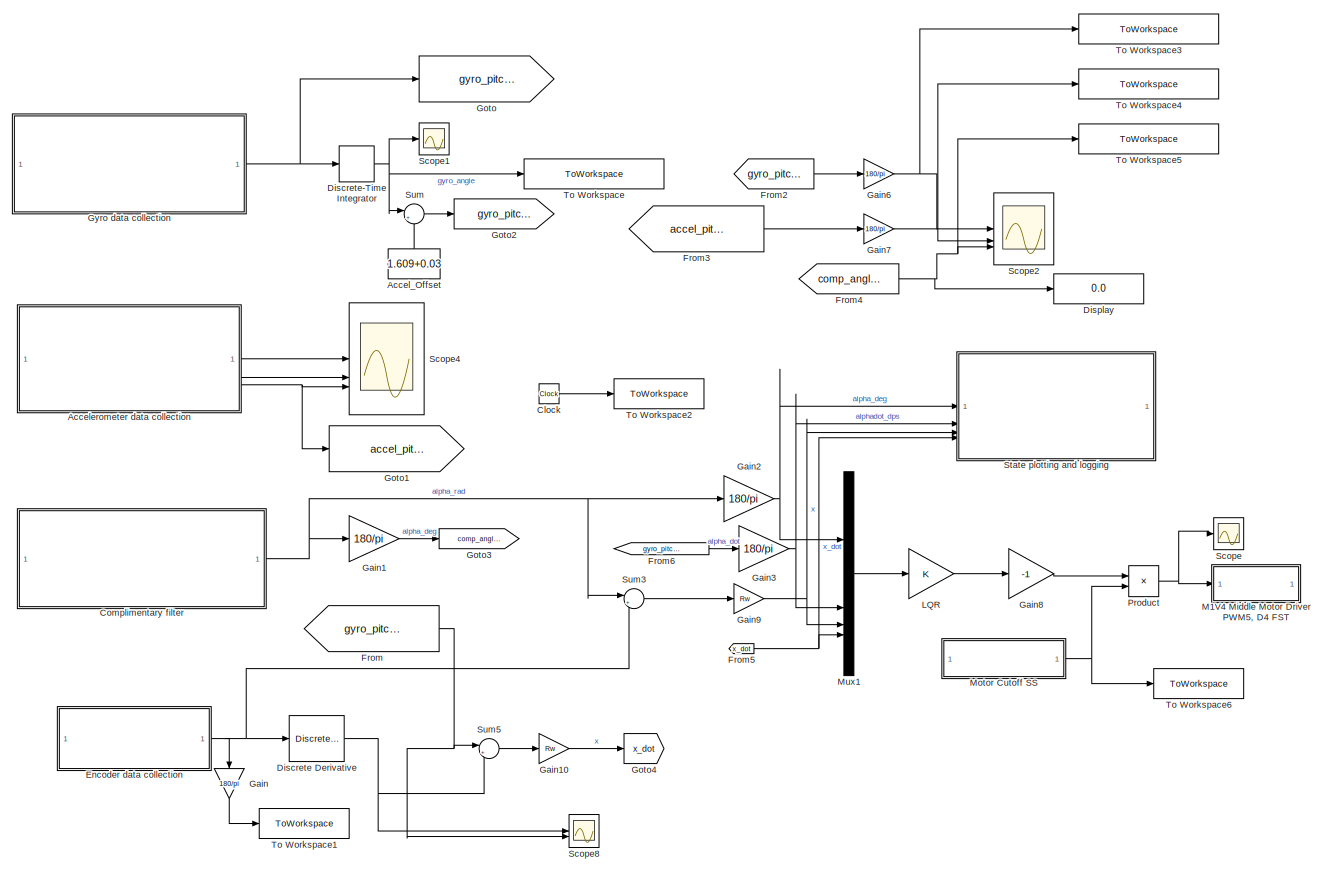
[diagram: root canvas - part 1/1, most of the canvas]
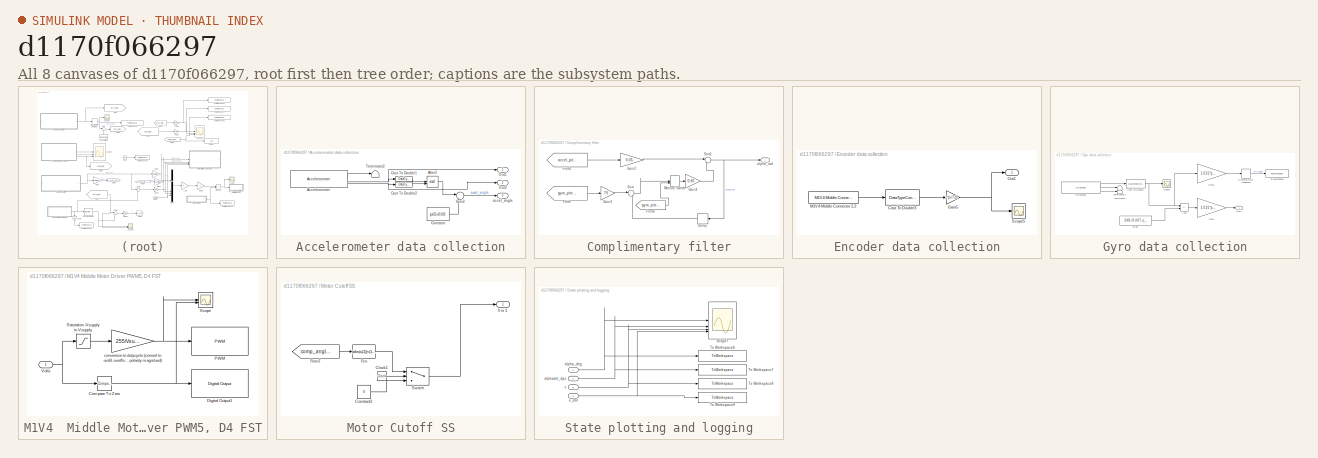
[diagram: thumbnail index - all 8 canvases of the model, root first then tree order]
MODEL slx_d1170f066297
KIND model
CONFIG AbsTol = auto
CONFIG EnableMultiTasking = off
CONFIG FixedStep = 0.005
CONFIG MaxStep = auto
CONFIG MinStep = auto
CONFIG RelTol = 1e-3
CONFIG SampleTimeConstraint = Unconstrained
CONFIG SolverName = FixedStepAuto
CONFIG StartTime = 0.0
CONFIG StopTime = 25
BLOCK [Constant] Accel_Offset
  NameLocation = right
  Value = 1.609+0.03
BLOCK [SubSystem] Accelerometer data collection
BLOCK [Reference] Accelerometer data collection/Accelerometer  REF=RASPlib/Accelerometer
  SourceBlock = RASPlib/Accelerometer
  SourceProductName = Rensselaer Arduino Support Package
  SourceType = soMPU6050Accel
BLOCK [Trigonometry] Accelerometer data collection/Atan2
  Operator = atan2
BLOCK [DataTypeConversion] Accelerometer data collection/Cast To Double1
  OutDataTypeStr = double
  RndMeth = Floor
  SaturateOnIntegerOverflow = off
BLOCK [DataTypeConversion] Accelerometer data collection/Cast To Double2
  OutDataTypeStr = double
  RndMeth = Floor
  SaturateOnIntegerOverflow = off
BLOCK [Constant] Accelerometer data collection/Constant
  Value = pi/2+0.03
BLOCK [Outport] Accelerometer data collection/Out1
BLOCK [Outport] Accelerometer data collection/Out2
  Port = 2
BLOCK [Sum] Accelerometer data collection/Sum2
  Inputs = |++
BLOCK [Terminator] Accelerometer data collection/Terminator2
BLOCK [Outport] Accelerometer data collection/accel_angle
  Port = 3
BLOCK [Clock] Clock
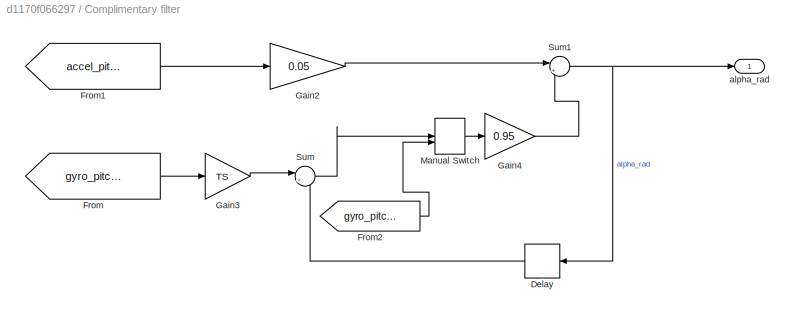
BLOCK [SubSystem] Complimentary filter
BLOCK [Delay] Complimentary filter/Delay
  DelayLength = 1
  InputPortMap = u0
  NameLocation = top
  SampleTime = TS
BLOCK [From] Complimentary filter/From
  GotoTag = gyro_pitch_rate_radpsec
  TagVisibility = global
BLOCK [From] Complimentary filter/From1
  GotoTag = accel_pitch_rad
  TagVisibility = global
BLOCK [From] Complimentary filter/From2
  GotoTag = gyro_pitch_rad
  TagVisibility = global
BLOCK [Gain] Complimentary filter/Gain2
  Gain = 0.05
BLOCK [Gain] Complimentary filter/Gain3
  Gain = TS
BLOCK [Gain] Complimentary filter/Gain4
  Gain = 0.95
BLOCK [ManualSwitch] Complimentary filter/Manual Switch
BLOCK [Sum] Complimentary filter/Sum
  Inputs = |++
BLOCK [Sum] Complimentary filter/Sum1
  Inputs = |++
  NameLocation = top
BLOCK [Outport] Complimentary filter/alpha_rad
BLOCK [Reference] Discrete Derivative  REF=simulink/Discrete/Discrete Derivative
  SourceBlock = simulink/Discrete/Discrete Derivative
  SourceType = Discrete Derivative
BLOCK [DiscreteIntegrator] Discrete-Time Integrator
  ICPrevOutput = DiscIntNeverNeededParam
  ICPrevScaledInput = DiscIntNeverNeededParam
  InitialConditionSetting = Auto
  SampleTime = -1
BLOCK [Display] Display
  Decimation = 1
BLOCK [SubSystem] Encoder data collection
BLOCK [DataTypeConversion] Encoder data collection/Cast To Double3
  OutDataTypeStr = double
  RndMeth = Floor
  SaturateOnIntegerOverflow = off
BLOCK [Gain] Encoder data collection/Gain5
  Gain = 2*pi/720
BLOCK [Reference] Encoder data collection/M1V4 Middle Connector 2,3  REF=MinSegLibrary_M1V4/M1V4 Middle Connector 2,3
  SourceBlock = MinSegLibrary_M1V4/M1V4 Middle Connector 2,3
  SourceProductName = Rensselaer Arduino Support Package
  SourceType = Encoder_arduino
BLOCK [Outport] Encoder data collection/Out1
BLOCK [Scope] Encoder data collection/Scope5
  Floating = off
  NumInputPorts = 1
  ScopeSpecificationString = Simulink.scopes.TimeScopeBlockCfg('CurrentConfiguration', extmgr.ConfigurationSet(extmgr.Configuration('Core','General UI',true),extmgr.Configuration('Core','Source UI',true),extmgr.Configuration('Sources','WiredSimulink',true,'DataLoggingVariableName','ScopeData1'),extmgr.Configuration('Visuals','Time Domain',true,'SerializedDisplays',{struct('MinYLimReal','-11.0283','MaxYLimReal','13.99536','YLa...<+1408ch>
BLOCK [From] From
  GotoTag = gyro_pitch_rate_radpsec
  TagVisibility = global
BLOCK [From] From2
  GotoTag = gyro_pitch_rad
  TagVisibility = global
BLOCK [From] From3
  GotoTag = accel_pitch_rad
  TagVisibility = global
BLOCK [From] From4
  GotoTag = comp_angle_deg
  TagVisibility = global
BLOCK [From] From5
  GotoTag = x_dot
BLOCK [From] From6
  GotoTag = gyro_pitch_rate_radpsec
  TagVisibility = global
BLOCK [Gain] Gain
  Gain = 180/pi
  NameLocation = left
BLOCK [Gain] Gain1
  Gain = 180/pi
BLOCK [Gain] Gain10
  Gain = Rw
BLOCK [Gain] Gain2
  Gain = 180/pi
BLOCK [Gain] Gain3
  Gain = 180/pi
BLOCK [Gain] Gain6
  Gain = 180/pi
BLOCK [Gain] Gain7
  Gain = 180/pi
BLOCK [Gain] Gain8
  Gain = -1
BLOCK [Gain] Gain9
  Gain = Rw
BLOCK [Goto] Goto
  GotoTag = gyro_pitch_rate_radpsec
  TagVisibility = global
BLOCK [Goto] Goto1
  GotoTag = accel_pitch_rad
  TagVisibility = global
BLOCK [Goto] Goto2
  GotoTag = gyro_pitch_rad
  TagVisibility = global
BLOCK [Goto] Goto3
  GotoTag = comp_angle_deg
  TagVisibility = global
BLOCK [Goto] Goto4
  GotoTag = x_dot
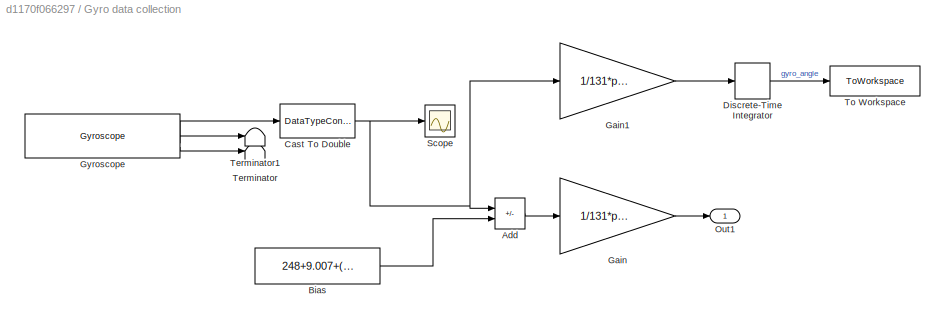
BLOCK [SubSystem] Gyro data collection
BLOCK [Sum] Gyro data collection/Add
  IconShape = rectangular
  Inputs = +-
BLOCK [Constant] Gyro data collection/Bias
  Value = 248+9.007+(-0.009/10)/GSc-20
BLOCK [DataTypeConversion] Gyro data collection/Cast To Double
  OutDataTypeStr = double
  RndMeth = Floor
  SaturateOnIntegerOverflow = off
BLOCK [DiscreteIntegrator] Gyro data collection/Discrete-Time Integrator
  ICPrevOutput = DiscIntNeverNeededParam
  ICPrevScaledInput = DiscIntNeverNeededParam
  InitialConditionSetting = Auto
  SampleTime = -1
BLOCK [Gain] Gyro data collection/Gain
  Gain = 1/131*pi/180
BLOCK [Gain] Gyro data collection/Gain1
  Gain = 1/131*pi/180
BLOCK [Reference] Gyro data collection/Gyroscope  REF=RASPlib/Gyroscope
  SourceBlock = RASPlib/Gyroscope
  SourceProductName = Rensselaer Arduino Support Package
  SourceType = soMPU6050Gyro
BLOCK [Outport] Gyro data collection/Out1
BLOCK [Scope] Gyro data collection/Scope
  Floating = off
  NumInputPorts = 1
  ScopeSpecificationString = Simulink.scopes.TimeScopeBlockCfg('CurrentConfiguration', extmgr.ConfigurationSet(extmgr.Configuration('Core','General UI',true),extmgr.Configuration('Core','Source UI',true),extmgr.Configuration('Sources','WiredSimulink',true),extmgr.Configuration('Visuals','Time Domain',true,'SerializedDisplays',{struct('MinYLimReal','-17493.625','MaxYLimReal','17602.625','YLabelReal','','MinYLimMag','   0.00000...<+1352ch>
BLOCK [Terminator] Gyro data collection/Terminator
BLOCK [Terminator] Gyro data collection/Terminator1
BLOCK [ToWorkspace] Gyro data collection/To Workspace
  FixptAsFi = on
  MaxDataPoints = inf
  SampleTime = -1
  Save2DSignal = 2-D array (concatenate along first dimension)
  VariableName = angles_no_bias
BLOCK [Gain] LQR
  Gain = K
  Multiplication = Matrix(K*u)
BLOCK [SubSystem] M1V4  Middle Motor Driver PWM5, D4 FST
  AncestorBlock = MinSegLibrary_M1V4/M1V4  Middle Motor Driver\nPWM5, D4 FST
  LibrarySourceBlock = MinSegLibrary_M1V4/M1V4  Middle Motor Driver\nPWM5, D4 FST
BLOCK [Reference] M1V4  Middle Motor Driver PWM5, D4 FST/Compare To Zero  REF=simulink/Logic and Bit
Operations/Compare
To Zero
  SourceBlock = simulink/Logic and Bit\nOperations/Compare\nTo Zero
  SourceType = Compare To Zero
BLOCK [Reference] M1V4  Middle Motor Driver PWM5, D4 FST/Digital Output1  REF=arduinolib/Digital Output
  SourceBlock = arduinolib/Digital Output
  SourceType = Arduino Digital Output
BLOCK [Reference] M1V4  Middle Motor Driver PWM5, D4 FST/PWM  REF=arduinolib/PWM
  SourceBlock = arduinolib/PWM
  SourceType = Arduino PWM
BLOCK [Saturate] M1V4  Middle Motor Driver PWM5, D4 FST/Saturation -Vsupply to Vsupply
  LowerLimit = -Vsupply
  OutDataTypeStr = single
  UpperLimit = Vsupply
BLOCK [Scope] M1V4  Middle Motor Driver PWM5, D4 FST/Scope
  Floating = off
  NumInputPorts = 2
  ScopeSpecificationString = Simulink.scopes.TimeScopeBlockCfg('CurrentConfiguration', extmgr.ConfigurationSet(extmgr.Configuration('Core','General UI',true),extmgr.Configuration('Core','Source UI',true),extmgr.Configuration('Sources','WiredSimulink',true,'DataLoggingVariableName','ScopeData5'),extmgr.Configuration('Visuals','Time Domain',true,'SerializedDisplays',{struct('MinYLimReal','-31.875','MaxYLimReal','286.875','YLabe...<+2186ch>
BLOCK [Inport] M1V4  Middle Motor Driver PWM5, D4 FST/Volts
BLOCK [Gain] M1V4  Middle Motor Driver PWM5, D4 FST/conversion to dutycycle (convert to uint8, overflow will provide reverse polairty magnitued)
  Gain = 255/Vsupply
  OutDataTypeStr = uint8
BLOCK [SubSystem] Motor Cutoff SS
BLOCK [Outport] Motor Cutoff SS/0 or 1
BLOCK [Clock] Motor Cutoff SS/Clock1
BLOCK [Constant] Motor Cutoff SS/Constant2
  Value = 0
BLOCK [Fcn] Motor Cutoff SS/Fcn
  Expr = (abs(u(1))<(15))
BLOCK [From] Motor Cutoff SS/From7
  GotoTag = comp_angle_deg
  TagVisibility = global
BLOCK [Switch] Motor Cutoff SS/Switch
  Criteria = u2 > Threshold
  InputSameDT = off
  SaturateOnIntegerOverflow = off
  Threshold = 4
BLOCK [Mux] Mux1
  DisplayOption = bar
BLOCK [Product] Product
BLOCK [Scope] Scope
  Floating = off
  NumInputPorts = 1
  ScopeSpecificationString = Simulink.scopes.TimeScopeBlockCfg('CurrentConfiguration', extmgr.ConfigurationSet(extmgr.Configuration('Core','General UI',true),extmgr.Configuration('Core','Source UI',true),extmgr.Configuration('Sources','WiredSimulink',true,'DataLoggingVariableName','ScopeData1'),extmgr.Configuration('Visuals','Time Domain',true,'SerializedDisplays',{struct('MinYLimReal','-2825.32587','MaxYLimReal','1644.01434'...<+1501ch>
BLOCK [Scope] Scope1
  Floating = off
  NumInputPorts = 1
  ScopeSpecificationString = Simulink.scopes.TimeScopeBlockCfg('CurrentConfiguration', extmgr.ConfigurationSet(extmgr.Configuration('Core','General UI',true),extmgr.Configuration('Core','Source UI',true),extmgr.Configuration('Sources','WiredSimulink',true,'DataLoggingVariableName','ScopeData1'),extmgr.Configuration('Visuals','Time Domain',true,'SerializedDisplays',{struct('MinYLimReal','-1.83812','MaxYLimReal','1.32596','YLab...<+1764ch>
BLOCK [Scope] Scope2
  Floating = off
  NumInputPorts = 3
  ScopeSpecificationString = Simulink.scopes.TimeScopeBlockCfg('CurrentConfiguration', extmgr.ConfigurationSet(extmgr.Configuration('Core','General UI',true),extmgr.Configuration('Core','Source UI',true),extmgr.Configuration('Sources','WiredSimulink',true,'DataLoggingVariableName','ScopeData2'),extmgr.Configuration('Visuals','Time Domain',true,'SerializedDisplays',{struct('MinYLimReal','-11.40864','MaxYLimReal','169.87999','Y...<+3271ch>
BLOCK [Scope] Scope4
  Floating = off
  NumInputPorts = 3
  ScopeSpecificationString = Simulink.scopes.TimeScopeBlockCfg('CurrentConfiguration', extmgr.ConfigurationSet(extmgr.Configuration('Core','General UI',true),extmgr.Configuration('Core','Source UI',true),extmgr.Configuration('Sources','WiredSimulink',true,'DataLoggingVariableName','ScopeData4'),extmgr.Configuration('Visuals','Time Domain',true,'SerializedDisplays',{struct('MinYLimReal','-30324.5','MaxYLimReal','8800.5','YLabe...<+2844ch>
BLOCK [Scope] Scope8
  Floating = off
  NumInputPorts = 2
  ScopeSpecificationString = Simulink.scopes.TimeScopeBlockCfg('CurrentConfiguration', extmgr.ConfigurationSet(extmgr.Configuration('Core','General UI',true),extmgr.Configuration('Core','Source UI',true),extmgr.Configuration('Sources','WiredSimulink',true,'DataLoggingVariableName','ScopeData4'),extmgr.Configuration('Visuals','Time Domain',true,'SerializedDisplays',{struct('MinYLimReal','-15.23528','MaxYLimReal','14.94439','YL...<+2067ch>
BLOCK [SubSystem] State plotting and logging
BLOCK [Scope] State plotting and logging/Scope7
  Floating = off
  NumInputPorts = 4
  ScopeSpecificationString = Simulink.scopes.TimeScopeBlockCfg('CurrentConfiguration', extmgr.ConfigurationSet(extmgr.Configuration('Core','General UI',true),extmgr.Configuration('Core','Source UI',true),extmgr.Configuration('Sources','WiredSimulink',true,'DataLoggingVariableName','ScopeData3'),extmgr.Configuration('Visuals','Time Domain',true,'SerializedDisplays',{struct('MinYLimReal','-79.25289','MaxYLimReal','112.16541','Y...<+3462ch>
BLOCK [ToWorkspace] State plotting and logging/To Workspace6
  MaxDataPoints = inf
  SampleTime = -1
  Save2DSignal = 2-D array (concatenate along first dimension)
  VariableName = state_alpha
BLOCK [ToWorkspace] State plotting and logging/To Workspace7
  MaxDataPoints = inf
  SampleTime = -1
  Save2DSignal = 2-D array (concatenate along first dimension)
  VariableName = state_alphadot
BLOCK [ToWorkspace] State plotting and logging/To Workspace8
  MaxDataPoints = inf
  SampleTime = -1
  Save2DSignal = 2-D array (concatenate along first dimension)
  VariableName = state_x
BLOCK [ToWorkspace] State plotting and logging/To Workspace9
  MaxDataPoints = inf
  SampleTime = -1
  Save2DSignal = 2-D array (concatenate along first dimension)
  VariableName = state_xdot
BLOCK [Inport] State plotting and logging/alpha_deg
BLOCK [Inport] State plotting and logging/alphadot_dps
  Port = 2
BLOCK [Inport] State plotting and logging/x
  Port = 3
BLOCK [Inport] State plotting and logging/x_dot
  Port = 4
BLOCK [Sum] Sum
  Inputs = |++
BLOCK [Sum] Sum3
  Inputs = |++
BLOCK [Sum] Sum5
  Inputs = |++
BLOCK [ToWorkspace] To Workspace
  MaxDataPoints = inf
  SampleTime = -1
  Save2DSignal = 2-D array (concatenate along first dimension)
  VariableName = gyro_angles
BLOCK [ToWorkspace] To Workspace1
  FixptAsFi = on
  MaxDataPoints = inf
  SampleTime = -1
  Save2DSignal = 2-D array (concatenate along first dimension)
  VariableName = encoder_pos
BLOCK [ToWorkspace] To Workspace2
  FixptAsFi = on
  MaxDataPoints = inf
  SampleTime = -1
  Save2DSignal = 2-D array (concatenate along first dimension)
  VariableName = tout
BLOCK [ToWorkspace] To Workspace3
  MaxDataPoints = inf
  SampleTime = -1
  Save2DSignal = 2-D array (concatenate along first dimension)
  VariableName = gyro_angles_deg
BLOCK [ToWorkspace] To Workspace4
  MaxDataPoints = inf
  SampleTime = -1
  Save2DSignal = 2-D array (concatenate along first dimension)
  VariableName = accel_angles_deg
BLOCK [ToWorkspace] To Workspace5
  MaxDataPoints = inf
  SampleTime = -1
  Save2DSignal = 2-D array (concatenate along first dimension)
  VariableName = complimentary_angles_deg
BLOCK [ToWorkspace] To Workspace6
  FixptAsFi = on
  MaxDataPoints = inf
  SampleTime = -1
  Save2DSignal = 2-D array (concatenate along first dimension)
  VariableName = Motor_Cutoff
LINE Accel_Offset:1 -> Sum:2
LINE Accelerometer data collection/Accelerometer:1 -> Accelerometer data collection/Terminator2:1
NET Accelerometer data collection/Accelerometer:2 -> Accelerometer data collection/Cast To Double1:1, Accelerometer data collection/Out1:1
NET Accelerometer data collection/Accelerometer:3 -> Accelerometer data collection/Cast To Double2:1, Accelerometer data collection/Out2:1
LINE Accelerometer data collection/Atan2:1 -> Accelerometer data collection/Sum2:1
LINE Accelerometer data collection/Cast To Double1:1 -> Accelerometer data collection/Atan2:1
LINE Accelerometer data collection/Cast To Double2:1 -> Accelerometer data collection/Atan2:2
LINE Accelerometer data collection/Constant:1 -> Accelerometer data collection/Sum2:2
LINE Accelerometer data collection/Sum2:1 -> Accelerometer data collection/accel_angle:1
LINE Accelerometer data collection:1 -> Scope4:1
LINE Accelerometer data collection:2 -> Scope4:2
NET Accelerometer data collection:3 -> Goto1:1, Scope4:3
LINE Clock:1 -> To Workspace2:1
LINE Complimentary filter/Delay:1 -> Complimentary filter/Sum:2
LINE Complimentary filter/From1:1 -> Complimentary filter/Gain2:1
LINE Complimentary filter/From2:1 -> Complimentary filter/Manual Switch:2
LINE Complimentary filter/From:1 -> Complimentary filter/Gain3:1
LINE Complimentary filter/Gain2:1 -> Complimentary filter/Sum1:1
LINE Complimentary filter/Gain3:1 -> Complimentary filter/Sum:1
LINE Complimentary filter/Gain4:1 -> Complimentary filter/Sum1:2
LINE Complimentary filter/Manual Switch:1 -> Complimentary filter/Gain4:1
NET Complimentary filter/Sum1:1 -> Complimentary filter/Delay:1, Complimentary filter/alpha_rad:1
LINE Complimentary filter/Sum:1 -> Complimentary filter/Manual Switch:1
NET Complimentary filter:1 -> Gain1:1, Gain2:1, Sum3:1
NET Discrete Derivative:1 -> Scope8:1, Sum5:2
NET Discrete-Time Integrator:1 -> Scope1:1, Sum:1, To Workspace:1
LINE Encoder data collection/Cast To Double3:1 -> Encoder data collection/Gain5:1
NET Encoder data collection/Gain5:1 -> Encoder data collection/Out1:1, Encoder data collection/Scope5:1
LINE Encoder data collection/M1V4 Middle Connector 2,3:1 -> Encoder data collection/Cast To Double3:1
NET Encoder data collection:1 -> Discrete Derivative:1, Gain:1, Sum3:2
LINE From2:1 -> Gain6:1
LINE From3:1 -> Gain7:1
NET From4:1 -> Display:1, Scope2:3, To Workspace5:1
NET From5:1 -> Mux1:4, State plotting and logging:4
LINE From6:1 -> Gain3:1
NET From:1 -> Scope8:2, Sum5:1
LINE Gain10:1 -> Goto4:1
LINE Gain1:1 -> Goto3:1
NET Gain2:1 -> Mux1:1, State plotting and logging:1
NET Gain3:1 -> Mux1:2, State plotting and logging:2
NET Gain6:1 -> Scope2:1, To Workspace3:1
NET Gain7:1 -> Scope2:2, To Workspace4:1
LINE Gain8:1 -> Product:1
NET Gain9:1 -> Mux1:3, State plotting and logging:3
LINE Gain:1 -> To Workspace1:1
LINE Gyro data collection/Add:1 -> Gyro data collection/Gain:1
LINE Gyro data collection/Bias:1 -> Gyro data collection/Add:2
NET Gyro data collection/Cast To Double:1 -> Gyro data collection/Add:1, Gyro data collection/Gain1:1, Gyro data collection/Scope:1
LINE Gyro data collection/Discrete-Time Integrator:1 -> Gyro data collection/To Workspace:1
LINE Gyro data collection/Gain1:1 -> Gyro data collection/Discrete-Time Integrator:1
LINE Gyro data collection/Gain:1 -> Gyro data collection/Out1:1
LINE Gyro data collection/Gyroscope:1 -> Gyro data collection/Cast To Double:1
LINE Gyro data collection/Gyroscope:2 -> Gyro data collection/Terminator1:1
LINE Gyro data collection/Gyroscope:3 -> Gyro data collection/Terminator:1
NET Gyro data collection:1 -> Discrete-Time Integrator:1, Goto:1
LINE LQR:1 -> Gain8:1
LINE Motor Cutoff SS/Clock1:1 -> Motor Cutoff SS/Switch:2
LINE Motor Cutoff SS/Constant2:1 -> Motor Cutoff SS/Switch:3
LINE Motor Cutoff SS/Fcn:1 -> Motor Cutoff SS/Switch:1
LINE Motor Cutoff SS/From7:1 -> Motor Cutoff SS/Fcn:1
LINE Motor Cutoff SS/Switch:1 -> Motor Cutoff SS/0 or 1:1
NET Motor Cutoff SS:1 -> Product:2, To Workspace6:1
LINE Mux1:1 -> LQR:1
NET Product:1 -> M1V4  Middle Motor Driver PWM5, D4 FST:1, Scope:1
NET State plotting and logging/alpha_deg:1 -> State plotting and logging/Scope7:1, State plotting and logging/To Workspace6:1
NET State plotting and logging/alphadot_dps:1 -> State plotting and logging/Scope7:2, State plotting and logging/To Workspace7:1
NET State plotting and logging/x:1 -> State plotting and logging/Scope7:3, State plotting and logging/To Workspace8:1
NET State plotting and logging/x_dot:1 -> State plotting and logging/Scope7:4, State plotting and logging/To Workspace9:1
LINE Sum3:1 -> Gain9:1
LINE Sum5:1 -> Gain10:1
LINE Sum:1 -> Goto2:1
note: NET lines group one-source signal fan-out (src -> all destinations, sorted); 1:1 wires keep LINE
